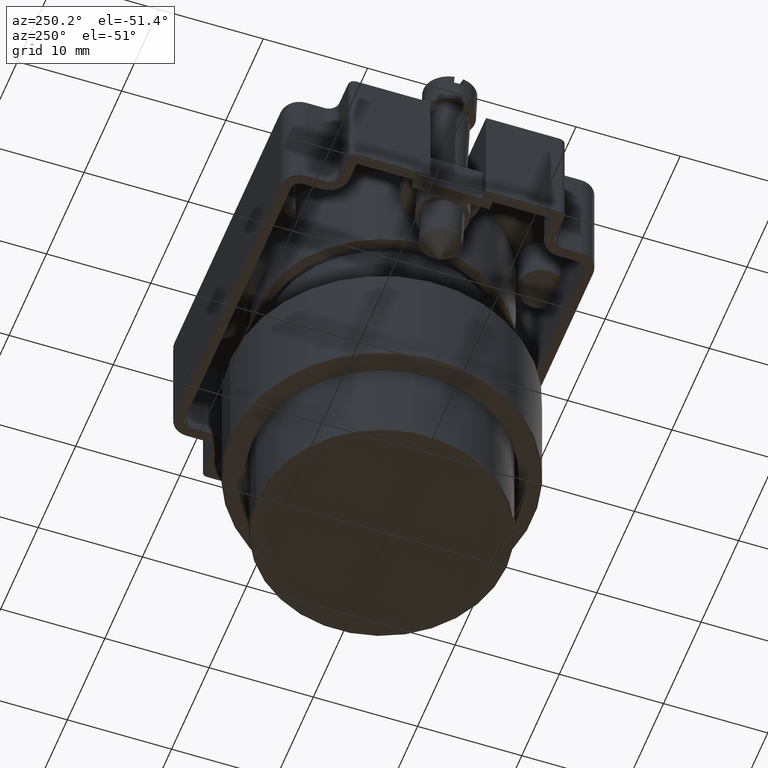
[diagram: clean part render]
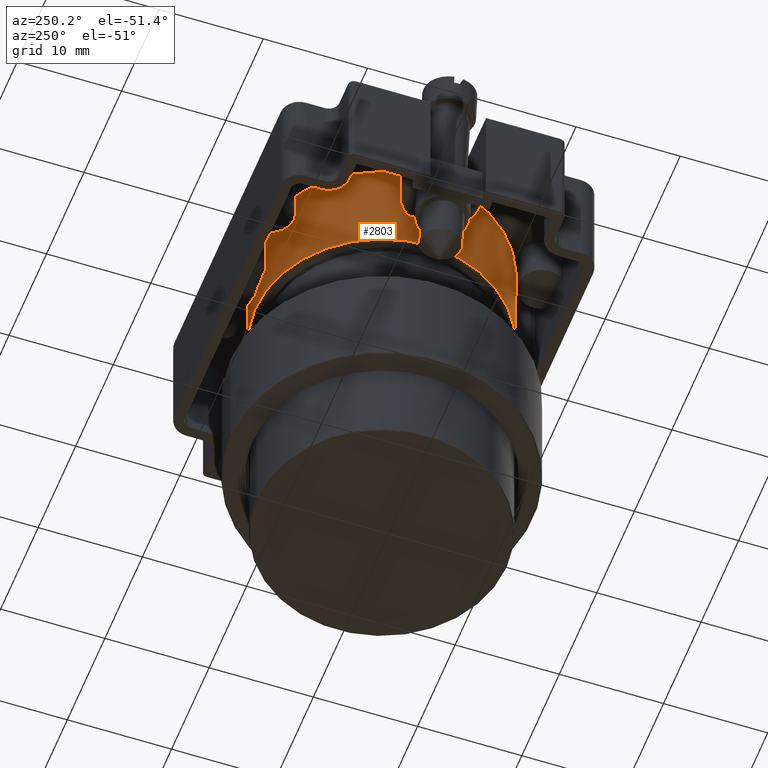
[diagram: same view with one face highlighted and labeled with its STEP entity id]
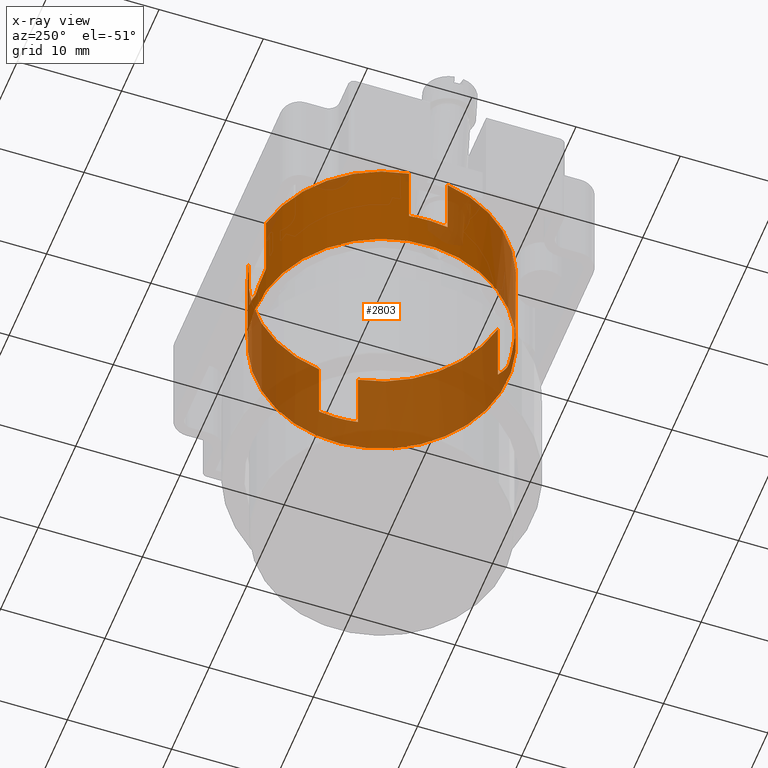
[diagram: x-ray of the same camera — body ghosted, the highlighted face saturated]
A machine part, auxiliary view. The second image highlights one B-rep face of the part: STEP entity #2803.
The next image is the same camera in x-ray: the body ghosted, the highlighted face saturated — about 56% of this face is hidden behind the body in this view.
In plain terms, the highlighted cylindrical surface (bore or boss wall) has radius 12.125 mm, axis along (0, 0, -1).
Its self-contained STEP definition (entity closure, byte-faithful):
#2022=CARTESIAN_POINT('',(12.822269763913567,12.044157796525630,3.635943168397369));
#2023=VERTEX_POINT('',#2022);
#2024=CARTESIAN_POINT('',(12.773175336931434,8.325254952629118,3.642406572327189));
#2025=VERTEX_POINT('',#2024);
#2026=CARTESIAN_POINT('',(0.817219691723891,10.342864828157554,5.216437994062887));
#2027=DIRECTION('',(-0.130526192220052,2.120064E-030,-0.991444861373810));
#2028=DIRECTION('',(-0.991444861373810,4.539072E-016,0.130526192220052));
#2029=AXIS2_PLACEMENT_3D('',#2026,#2027,#2028);
#2030=ELLIPSE('',#2029,12.229626147034352,12.125000000000002);
#2031=EDGE_CURVE('',#2023,#2025,#2030,.T.);
#2098=CARTESIAN_POINT('',(-11.138735953483650,8.325254952629106,3.655571822085927));
#2099=VERTEX_POINT('',#2098);
#2100=CARTESIAN_POINT('',(-11.187830380465781,12.044157796525640,3.649108418156107));
#2101=VERTEX_POINT('',#2100);
#2102=CARTESIAN_POINT('',(0.817219691723891,10.342864828157554,5.229603243821623));
#2103=DIRECTION('',(0.130526192220052,2.120064E-030,-0.991444861373810));
#2104=DIRECTION('',(-0.991444861373810,4.539072E-016,-0.130526192220052));
#2105=AXIS2_PLACEMENT_3D('',#2102,#2103,#2104);
#2106=ELLIPSE('',#2105,12.229626147034352,12.125000000000002);
#2107=EDGE_CURVE('',#2099,#2101,#2106,.T.);
#2174=CARTESIAN_POINT('',(-1.370895773257584,-1.583063886701885,3.184227221812229));
#2175=VERTEX_POINT('',#2174);
#2176=CARTESIAN_POINT('',(-0.400659761947019,-1.720815979801774,2.600000000000000));
#2177=VERTEX_POINT('',#2176);
#2178=CARTESIAN_POINT('',(-1.370895773257584,-1.583063886701886,3.184227221812229));
#2179=CARTESIAN_POINT('',(-1.050515397186102,-1.641845829166888,2.988791247813254));
#2180=CARTESIAN_POINT('',(-0.721595207501960,-1.688416193093379,2.789697783167660));
#2181=CARTESIAN_POINT('',(-0.400659761947022,-1.720815979801777,2.599999999999996));
#2182=B_SPLINE_CURVE_WITH_KNOTS('',3,(#2178,#2179,#2180,#2181),.UNSPECIFIED.,.F.,.U.,(4,4),(2.057646060731964,2.167553072566878),.UNSPECIFIED.);
#2183=EDGE_CURVE('',#2175,#2177,#2182,.T.);
#2185=CARTESIAN_POINT('',(-0.230504713933228,-1.736783286327835,2.499999999999999));
#2186=VERTEX_POINT('',#2185);
#2187=CARTESIAN_POINT('',(-0.400659761947022,-1.720815979801777,2.599999999999996));
#2188=CARTESIAN_POINT('',(-0.343653900858523,-1.726570961889226,2.566305107068013));
#2189=CARTESIAN_POINT('',(-0.286927672543354,-1.731889459105805,2.532944136161368));
#2190=CARTESIAN_POINT('',(-0.230504713933231,-1.736783286327835,2.499999999999994));
#2191=B_SPLINE_CURVE_WITH_KNOTS('',3,(#2187,#2188,#2189,#2190),.UNSPECIFIED.,.F.,.U.,(4,4),(2.013362629040262,2.032884760160679),.UNSPECIFIED.);
#2192=EDGE_CURVE('',#2177,#2186,#2191,.T.);
#2194=CARTESIAN_POINT('',(3.005335156705380,-1.583063886701883,3.184227221812229));
#2195=VERTEX_POINT('',#2194);
#2196=CARTESIAN_POINT('',(-0.230504713933232,-1.736783286327837,2.499999999999994));
#2197=CARTESIAN_POINT('',(-0.053329405645300,-1.752150529877795,2.396551197873127));
#2198=CARTESIAN_POINT('',(0.120650786388550,-1.763326618077498,2.296152563622055));
#2199=CARTESIAN_POINT('',(0.292113111396555,-1.770759240604732,2.206991715783157));
#2200=CARTESIAN_POINT('',(0.408579308582529,-1.775807867355975,2.146428995166900));
#2201=CARTESIAN_POINT('',(0.523254986428934,-1.779199789494226,2.088742742916387));
#2202=CARTESIAN_POINT('',(0.646696583985956,-1.780936014388789,2.053456531391302));
#2203=CARTESIAN_POINT('',(0.702766639569764,-1.781724648271296,2.037428710294450));
#2204=CARTESIAN_POINT('',(0.761989905453591,-1.782171405847125,2.026736743085012));
#2205=CARTESIAN_POINT('',(0.824671671013446,-1.782132881863042,2.027623232865052));
#2206=CARTESIAN_POINT('',(0.953266581103675,-1.782053847901168,2.029441912867791));
#2207=CARTESIAN_POINT('',(1.062751657735419,-1.780142399006989,2.074137386577914));
#2208=CARTESIAN_POINT('',(1.172090246009799,-1.776940941313376,2.123544860955779));
#2209=CARTESIAN_POINT('',(1.358132331929527,-1.771493588492167,2.207612798345066));
#2210=CARTESIAN_POINT('',(1.541654761837461,-1.761961033082058,2.313287051882596));
#2211=CARTESIAN_POINT('',(1.730826556023103,-1.747666487607911,2.422204767893211));
#2212=CARTESIAN_POINT('',(2.146183716461108,-1.716280509357545,2.661351166214972));
#2213=CARTESIAN_POINT('',(2.582762561289866,-1.660595595402605,2.926452735799767));
#2214=CARTESIAN_POINT('',(3.005335156705380,-1.583063886701884,3.184227221812229));
#2215=B_SPLINE_CURVE_WITH_KNOTS('',3,(#2196,#2197,#2198,#2199,#2200,#2201,#2202,#2203,#2204,#2205,#2206,#2207,#2208,#2209,#2210,#2211,#2212,#2213,#2214),.UNSPECIFIED.,.F.,.U.,(4,3,3,3,3,3,4),(2.187075203687296,2.248377192893456,2.290016716692307,2.308930360553781,2.347732687037746,2.413755724938141,2.558719944703840),.UNSPECIFIED.);
#2216=EDGE_CURVE('',#2186,#2195,#2215,.T.);
#2536=CARTESIAN_POINT('',(12.773175336931432,8.325254952629122,9.750000000000000));
#2537=VERTEX_POINT('',#2536);
#2538=CARTESIAN_POINT('',(12.773175336931434,8.325254952629118,3.642406572327189));
#2539=DIRECTION('',(0.0,0.0,1.0));
#2540=VECTOR('',#2539,6.107593427672811);
#2541=LINE('',#2538,#2540);
#2542=EDGE_CURVE('',#2025,#2537,#2541,.T.);
#2568=CARTESIAN_POINT('',(-11.138735953483650,8.325254952629109,9.750000000000000));
#2569=VERTEX_POINT('',#2568);
#2570=CARTESIAN_POINT('',(-11.138735953483650,8.325254952629109,9.750000000000000));
#2571=DIRECTION('',(0.0,0.0,-1.0));
#2572=VECTOR('',#2571,6.094428177914073);
#2573=LINE('',#2570,#2572);
#2574=EDGE_CURVE('',#2569,#2099,#2573,.T.);
#2621=CARTESIAN_POINT('',(3.063176321847591,22.258035989983284,3.184227221812229));
#2622=VERTEX_POINT('',#2621);
#2623=CARTESIAN_POINT('',(3.063176321847591,22.258035989983284,9.750000000000000));
#2624=VERTEX_POINT('',#2623);
#2625=CARTESIAN_POINT('',(3.063176321847591,22.258035989983284,3.184227221812229));
#2626=DIRECTION('',(0.0,0.0,1.0));
#2627=VECTOR('',#2626,6.565772778187771);
#2628=LINE('',#2625,#2627);
#2629=EDGE_CURVE('',#2622,#2624,#2628,.T.);
#2658=CARTESIAN_POINT('',(0.817219691723891,10.342864828157554,10.750000000000000));
#2659=DIRECTION('',(0.0,0.0,-1.0));
#2660=DIRECTION('',(-0.134831460674157,0.990868546888271,0.0));
#2661=AXIS2_PLACEMENT_3D('',#2658,#2659,#2660);
#2662=CYLINDRICAL_SURFACE('',#2661,12.125000000000002);
#2663=ORIENTED_EDGE('',*,*,#2031,.T.);
#2664=ORIENTED_EDGE('',*,*,#2542,.T.);
#2665=CARTESIAN_POINT('',(3.005335156705380,-1.583063886701883,9.750000000000000));
#2666=VERTEX_POINT('',#2665);
#2667=CARTESIAN_POINT('',(0.817219691723891,10.342864828157554,9.750000000000000));
#2668=DIRECTION('',(0.0,0.0,-1.000000000000000));
#2669=DIRECTION('',(-0.134831460674157,0.990868546888271,0.0));
#2670=AXIS2_PLACEMENT_3D('',#2667,#2668,#2669);
#2671=CIRCLE('',#2670,12.125000000000000);
#2672=EDGE_CURVE('',#2537,#2666,#2671,.T.);
#2673=ORIENTED_EDGE('',*,*,#2672,.T.);
#2674=CARTESIAN_POINT('',(3.005335156705380,-1.583063886701883,9.750000000000000));
#2675=DIRECTION('',(0.0,0.0,-1.0));
#2676=VECTOR('',#2675,6.565772778187771);
#2677=LINE('',#2674,#2676);
#2678=EDGE_CURVE('',#2666,#2195,#2677,.T.);
#2679=ORIENTED_EDGE('',*,*,#2678,.T.);
#2680=ORIENTED_EDGE('',*,*,#2216,.F.);
#2681=ORIENTED_EDGE('',*,*,#2192,.F.);
#2682=ORIENTED_EDGE('',*,*,#2183,.F.);
#2683=CARTESIAN_POINT('',(-1.370895773257584,-1.583063886701886,9.750000000000000));
#2684=VERTEX_POINT('',#2683);
#2685=CARTESIAN_POINT('',(-1.370895773257584,-1.583063886701885,3.184227221812229));
#2686=DIRECTION('',(0.0,0.0,1.0));
#2687=VECTOR('',#2686,6.565772778187771);
#2688=LINE('',#2685,#2687);
#2689=EDGE_CURVE('',#2175,#2684,#2688,.T.);
#2690=ORIENTED_EDGE('',*,*,#2689,.T.);
#2691=CARTESIAN_POINT('',(0.817219691723891,10.342864828157554,9.750000000000000));
#2692=DIRECTION('',(0.0,0.0,-1.000000000000000));
#2693=DIRECTION('',(-0.134831460674157,0.990868546888271,0.0));
#2694=AXIS2_PLACEMENT_3D('',#2691,#2692,#2693);
#2695=CIRCLE('',#2694,12.125000000000000);
#2696=EDGE_CURVE('',#2684,#2569,#2695,.T.);
#2697=ORIENTED_EDGE('',*,*,#2696,.T.);
#2698=ORIENTED_EDGE('',*,*,#2574,.T.);
#2699=ORIENTED_EDGE('',*,*,#2107,.T.);
#2700=CARTESIAN_POINT('',(-11.187830380465781,12.044157796525639,9.750000000000000));
#2701=VERTEX_POINT('',#2700);
#2702=CARTESIAN_POINT('',(-11.187830380465781,12.044157796525640,3.649108418156107));
#2703=DIRECTION('',(0.0,0.0,1.0));
#2704=VECTOR('',#2703,6.100891581843893);
#2705=LINE('',#2702,#2704);
#2706=EDGE_CURVE('',#2101,#2701,#2705,.T.);
#2707=ORIENTED_EDGE('',*,*,#2706,.T.);
#2708=CARTESIAN_POINT('',(-1.428736938399795,22.258035989983284,9.750000000000000));
#2709=VERTEX_POINT('',#2708);
#2710=CARTESIAN_POINT('',(0.817219691723891,10.342864828157554,9.750000000000000));
#2711=DIRECTION('',(0.0,0.0,-1.000000000000000));
#2712=DIRECTION('',(-0.134831460674157,0.990868546888271,0.0));
#2713=AXIS2_PLACEMENT_3D('',#2710,#2711,#2712);
#2714=CIRCLE('',#2713,12.125000000000000);
#2715=EDGE_CURVE('',#2701,#2709,#2714,.T.);
#2716=ORIENTED_EDGE('',*,*,#2715,.T.);
#2717=CARTESIAN_POINT('',(-1.428736938399795,22.258035989983284,3.184227221812229));
#2718=VERTEX_POINT('',#2717);
#2719=CARTESIAN_POINT('',(-1.428736938399795,22.258035989983284,9.750000000000000));
#2720=DIRECTION('',(0.0,0.0,-1.0));
#2721=VECTOR('',#2720,6.565772778187771);
#2722=LINE('',#2719,#2721);
#2723=EDGE_CURVE('',#2709,#2718,#2722,.T.);
#2724=ORIENTED_EDGE('',*,*,#2723,.T.);
#2725=CARTESIAN_POINT('',(1.928215313597943,22.416858108269015,2.499999999999996));
#2726=VERTEX_POINT('',#2725);
#2727=CARTESIAN_POINT('',(-1.428736938399795,22.258035989983281,3.184227221812229));
#2728=CARTESIAN_POINT('',(-0.877710082126192,22.361902095171004,2.849992075269173));
#2729=CARTESIAN_POINT('',(-0.328940010615178,22.425525212678821,2.519608223069966));
#2730=CARTESIAN_POINT('',(0.207725095539523,22.452536224905778,2.200263061576552));
#2731=CARTESIAN_POINT('',(0.284778478551866,22.456414416065975,2.154412074136729));
#2732=CARTESIAN_POINT('',(0.363519510127581,22.459660433389331,2.107631288872357));
#2733=CARTESIAN_POINT('',(0.446874807459326,22.462207618371018,2.058683561452050));
#2734=CARTESIAN_POINT('',(0.509025018037280,22.464106814799564,2.022187841757390));
#2735=CARTESIAN_POINT('',(0.572240341272251,22.465546443386824,1.985161978121090));
#2736=CARTESIAN_POINT('',(0.633872780795589,22.466478518400784,1.951004625778080));
#2737=CARTESIAN_POINT('',(0.677789016443036,22.467142669069990,1.926665781718199));
#2738=CARTESIAN_POINT('',(0.720070771461810,22.467559524857343,1.902458402450735));
#2739=CARTESIAN_POINT('',(0.765174689310342,22.467753129404862,1.887087670136910));
#2740=CARTESIAN_POINT('',(0.791008012802021,22.467864016643578,1.878284064616419));
#2741=CARTESIAN_POINT('',(0.821529373141575,22.467896329904139,1.874721674205279));
#2742=CARTESIAN_POINT('',(0.849502327115627,22.467821852058801,1.881329022085889));
#2743=CARTESIAN_POINT('',(0.895280310840989,22.467699968413797,1.892142004655657));
#2744=CARTESIAN_POINT('',(0.932238409492609,22.467383716852755,1.913961819568066));
#2745=CARTESIAN_POINT('',(0.971764779241834,22.466879873344691,1.935251081154231));
#2746=CARTESIAN_POINT('',(1.107923821091689,22.465144251031404,2.008587577211272));
#2747=CARTESIAN_POINT('',(1.247210366636682,22.461076324066603,2.093554897085344));
#2748=CARTESIAN_POINT('',(1.389588618212501,22.454347760151897,2.178183246277462));
#2749=CARTESIAN_POINT('',(1.569720074354367,22.445835041374380,2.285251759917276));
#2750=CARTESIAN_POINT('',(1.752947295675105,22.432985498441376,2.394922125254662));
#2751=CARTESIAN_POINT('',(1.928215313597945,22.416858108269015,2.499999999999994));
#2752=B_SPLINE_CURVE_WITH_KNOTS('',3,(#2727,#2728,#2729,#2730,#2731,#2732,#2733,#2734,#2735,#2736,#2737,#2738,#2739,#2740,#2741,#2742,#2743,#2744,#2745,#2746,#2747,#2748,#2749,#2750,#2751),.UNSPECIFIED.,.F.,.U.,(4,3,3,3,3,3,3,3,4),(2.104513444785274,2.291612706918849,2.318476072807873,2.338505559838442,2.352777584102529,2.360951903258870,2.374329248020241,2.420411052566411,2.478711969052425),.UNSPECIFIED.);
#2753=EDGE_CURVE('',#2718,#2726,#2752,.T.);
#2754=ORIENTED_EDGE('',*,*,#2753,.T.);
#2755=CARTESIAN_POINT('',(2.094880324567580,22.400360766671547,2.600000000000000));
#2756=VERTEX_POINT('',#2755);
#2757=CARTESIAN_POINT('',(1.928215313597945,22.416858108269015,2.499999999999993));
#2758=CARTESIAN_POINT('',(1.984710755590327,22.411659646811135,2.533870531815850));
#2759=CARTESIAN_POINT('',(2.040385164486230,22.406135292416490,2.567276923932670));
#2760=CARTESIAN_POINT('',(2.094880324567582,22.400360766671550,2.599999999999997));
#2761=B_SPLINE_CURVE_WITH_KNOTS('',3,(#2757,#2758,#2759,#2760),.UNSPECIFIED.,.F.,.U.,(4,4),(2.318982716337268,2.337767427954399),.UNSPECIFIED.);
#2762=EDGE_CURVE('',#2726,#2756,#2761,.T.);
#2763=ORIENTED_EDGE('',*,*,#2762,.T.);
#2764=CARTESIAN_POINT('',(2.094880324567582,22.400360766671550,2.599999999999997));
#2765=CARTESIAN_POINT('',(2.231188057879675,22.385917052512898,2.681849623325770));
#2766=CARTESIAN_POINT('',(2.363159823837312,22.369675026499962,2.761243397448749));
#2767=CARTESIAN_POINT('',(2.497750460254181,22.350838901081886,2.842371279181004));
#2768=CARTESIAN_POINT('',(2.685417373177752,22.324574685362577,2.955492217769660));
#2769=CARTESIAN_POINT('',(2.874045108807413,22.293686380239681,3.069506318490300));
#2770=CARTESIAN_POINT('',(3.063176321847591,22.258035989983277,3.184227221812228));
#2771=B_SPLINE_CURVE_WITH_KNOTS('',3,(#2764,#2765,#2766,#2767,#2768,#2769,#2770),.UNSPECIFIED.,.F.,.U.,(4,3,4),(2.497502154982563,2.544494971730440,2.610019566036853),.UNSPECIFIED.);
#2772=EDGE_CURVE('',#2756,#2622,#2771,.T.);
#2773=ORIENTED_EDGE('',*,*,#2772,.T.);
#2774=ORIENTED_EDGE('',*,*,#2629,.T.);
#2775=CARTESIAN_POINT('',(12.822269763913566,12.044157796525628,9.750000000000000));
#2776=VERTEX_POINT('',#2775);
#2777=CARTESIAN_POINT('',(0.817219691723891,10.342864828157554,9.750000000000000));
#2778=DIRECTION('',(0.0,0.0,-1.000000000000000));
#2779=DIRECTION('',(-0.134831460674157,0.990868546888271,0.0));
#2780=AXIS2_PLACEMENT_3D('',#2777,#2778,#2779);
#2781=CIRCLE('',#2780,12.125000000000000);
#2782=EDGE_CURVE('',#2624,#2776,#2781,.T.);
#2783=ORIENTED_EDGE('',*,*,#2782,.T.);
#2784=CARTESIAN_POINT('',(12.822269763913566,12.044157796525628,9.750000000000000));
#2785=DIRECTION('',(0.0,0.0,-1.0));
#2786=VECTOR('',#2785,6.114056831602631);
#2787=LINE('',#2784,#2786);
#2788=EDGE_CURVE('',#2776,#2023,#2787,.T.);
#2789=ORIENTED_EDGE('',*,*,#2788,.T.);
#2790=EDGE_LOOP('',(#2663,#2664,#2673,#2679,#2680,#2681,#2682,#2690,#2697,#2698,#2699,#2707,#2716,#2724,#2754,#2763,#2773,#2774,#2783,#2789));
#2791=FACE_OUTER_BOUND('',#2790,.T.);
#2792=CARTESIAN_POINT('',(2.452051152398048,-1.671416302862730,0.0));
#2793=VERTEX_POINT('',#2792);
#2794=CARTESIAN_POINT('',(0.817219691723891,10.342864828157554,0.0));
#2795=DIRECTION('',(0.0,0.0,-1.000000000000000));
#2796=DIRECTION('',(-0.134831460674157,0.990868546888271,0.0));
#2797=AXIS2_PLACEMENT_3D('',#2794,#2795,#2796);
#2798=CIRCLE('',#2797,12.125000000000000);
#2799=EDGE_CURVE('',#2793,#2793,#2798,.T.);
#2800=ORIENTED_EDGE('',*,*,#2799,.F.);
#2801=EDGE_LOOP('',(#2800));
#2802=FACE_BOUND('',#2801,.T.);
#2803=ADVANCED_FACE('',(#2791,#2802),#2662,.T.);